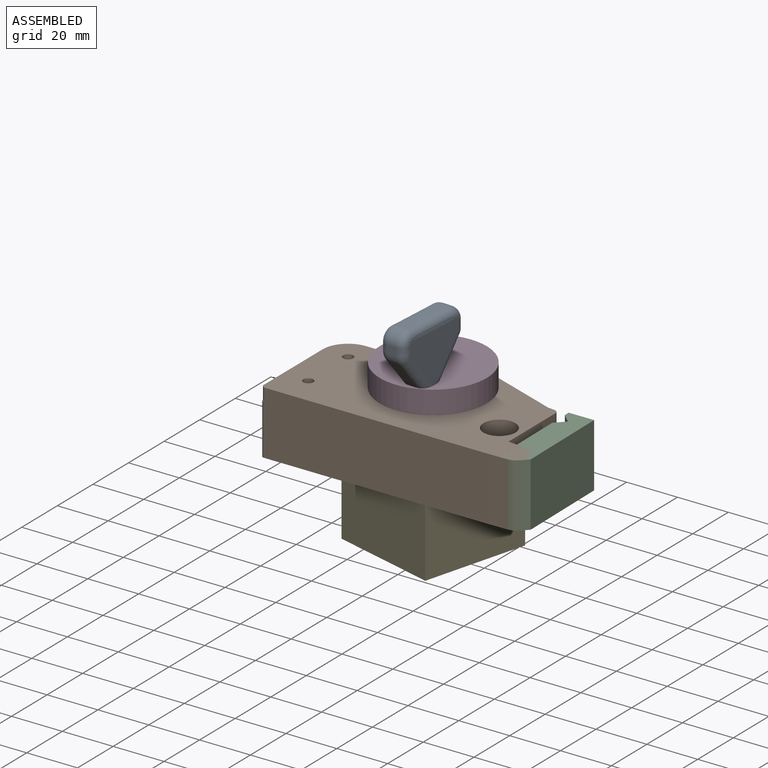
[diagram: assembled view]
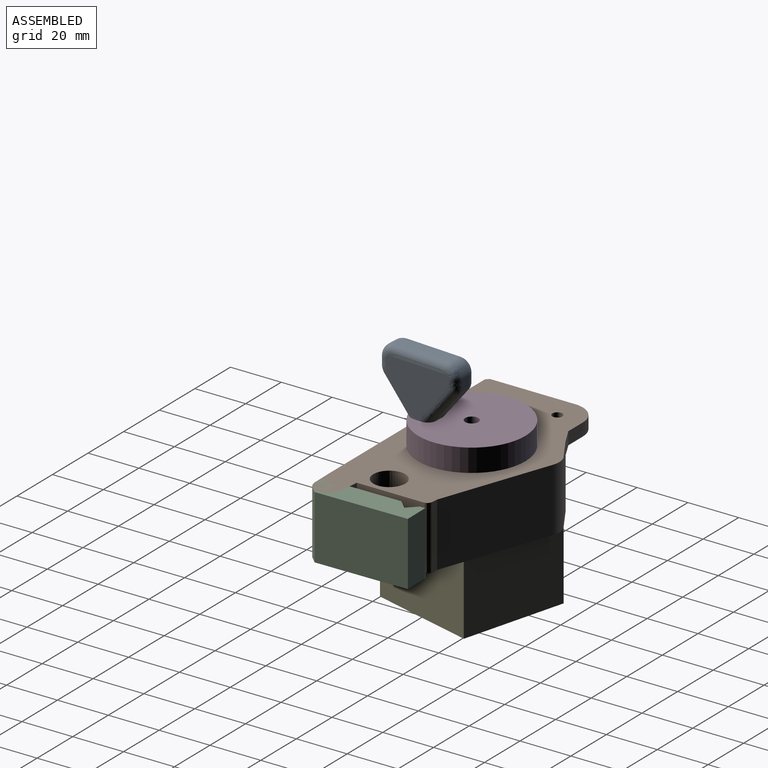
[diagram: assembled view, second angle]
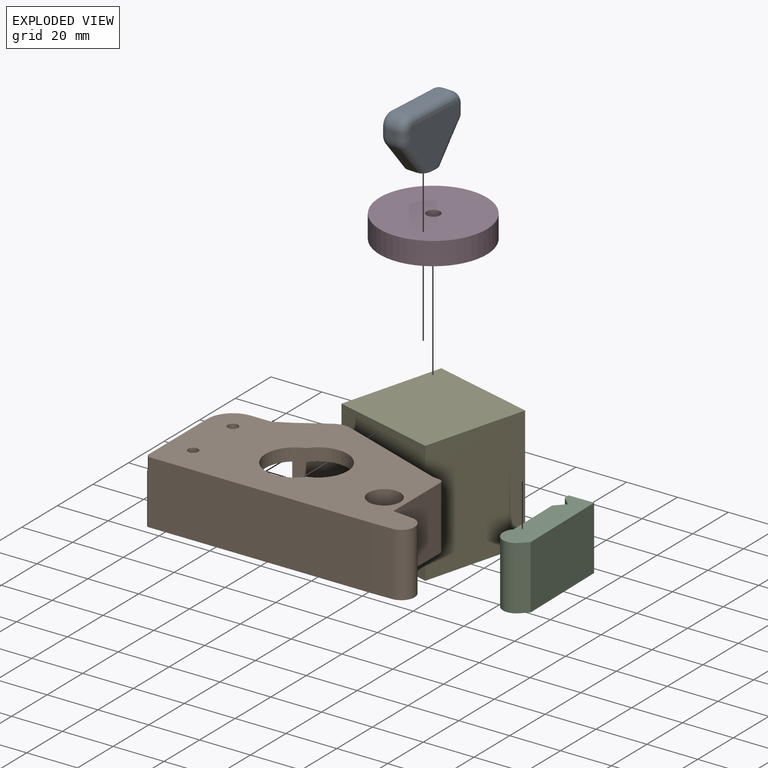
[diagram: exploded view]
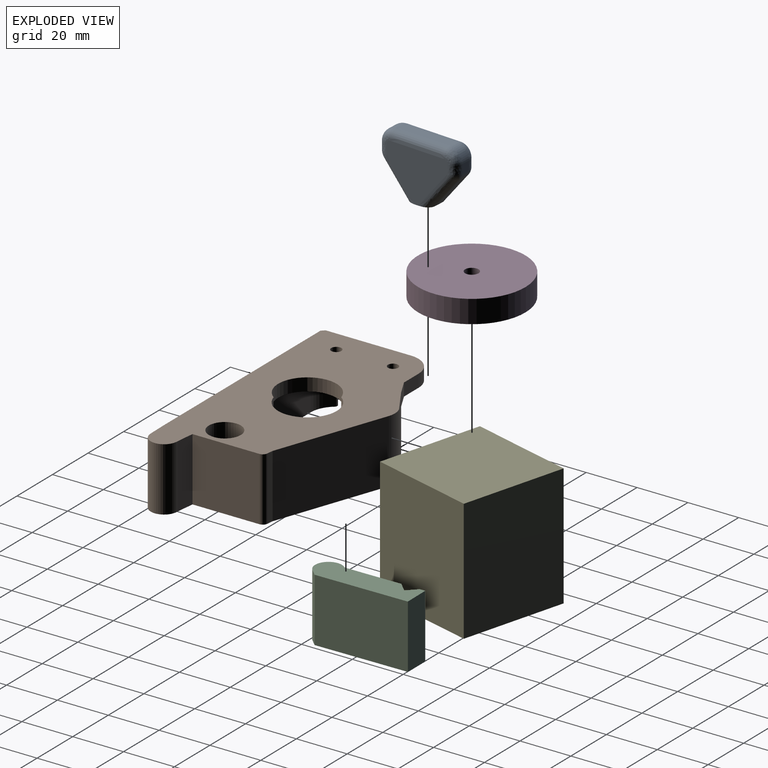
[diagram: exploded view, second angle]
ASSEMBLY  parts=5 mates=4
PART A: 30 faces, bbox 33.2x11.3x27.5 mm
  f0: plane 24.87x19.81mm, normal (0,-1,0), area 313.1mm2, adj f10,f12,f13,f14,f15,f16,f17,f18
  f1: plane 12.04x9.8mm, normal (0.78,0,-0.63), area 46.5mm2, adj f2,f10,f20,f29
  f2: cylinder r=5mm len=3.16mm, axis (0,1,0), area 10.2mm2, adj f1,f3,f19,f28
  f3: plane 3.1x3mm, normal (1,0,0), area 9.3mm2, adj f2,f4,f18,f27
  f4: cylinder r=5mm len=5mm, axis (0,1,0), area 23.5mm2, adj f3,f5,f17,f26
  f5: plane 21.85x3mm, normal (-0.01,0,1), area 65.5mm2, adj f4,f6,f16,f25
  f6: cylinder r=5.03mm len=5.08mm, axis (0,1,0), area 23.7mm2, adj f5,f7,f15,f24
  f7: plane 3.38x3mm, normal (-1,0,-0.01), area 10.1mm2, adj f6,f9,f14,f23
  f8: plane 24.87x19.81mm, normal (0,1,0), area 313.1mm2, adj f10,f21,f22,f23,f24,f25,f26,f27
  f9: cylinder r=3.7mm len=3mm, axis (0,1,0), area 8.6mm2, adj f7,f11,f13,f22
  f10: plane 11.31x11.3mm, normal (0,0,-1), area 90mm2, adj f0,f1,f8,f11,f12,f20,f21,f29
  f11: plane 12.04x9.8mm, normal (-0.78,0,-0.63), area 46.5mm2, adj f9,f10,f12,f21
  f12: bspline ~16.69x14.5mm, area 97.3mm2, adj f0,f10,f11,f13
  f13: bspline ~3.62x3.5mm, area 11.4mm2, adj f0,f9,f12,f14
  f14: bspline ~3.53x3.5mm, area 19.2mm2, adj f0,f7,f13,f15
  f15: bspline ~5.08x5.04mm, area 34.5mm2, adj f0,f6,f14,f16
  f16: bspline ~21.88x3.71mm, area 124.3mm2, adj f0,f5,f15,f17
  f17: bspline ~5x5mm, area 34mm2, adj f0,f4,f16,f18
  f18: bspline ~3.5x3.5mm, area 17.6mm2, adj f0,f3,f17,f19
  f19: bspline ~3.84x3.5mm, area 14.8mm2, adj f0,f2,f18,f20
  f20: bspline ~17.17x14.89mm, area 96.5mm2, adj f0,f1,f10,f19
  f21: bspline ~16.69x14.5mm, area 97.3mm2, adj f8,f10,f11,f22
  f22: bspline ~3.62x3.5mm, area 11.4mm2, adj f8,f9,f21,f23
  f23: bspline ~3.53x3.5mm, area 19.2mm2, adj f7,f8,f22,f24
  f24: bspline ~5.08x5.04mm, area 34.5mm2, adj f6,f8,f23,f25
  f25: bspline ~21.88x3.71mm, area 124.3mm2, adj f5,f8,f24,f26
  f26: bspline ~5x5mm, area 34mm2, adj f4,f8,f25,f27
  f27: bspline ~3.5x3.5mm, area 17.6mm2, adj f3,f8,f26,f28
  f28: bspline ~3.84x3.5mm, area 14.8mm2, adj f2,f8,f27,f29
  f29: bspline ~17.17x14.89mm, area 96.5mm2, adj f1,f8,f10,f28
PART B: 35 faces, bbox 102x55.9x25 mm
  f0: plane 75.62x51.07mm, normal (0,0,-1), area 2496mm2, adj f1,f5,f6,f7,f8,f16,f17,f19
  f1: cylinder r=11.5mm len=22.54mm, axis (0,0,1), area 218.2mm2, adj f0,f17,f20
  f2: plane 43.3x25mm, normal (0.34,0.94,0), area 1149.1mm2, adj f3,f18,f20,f21
  f3: cylinder r=8.07mm len=25mm, axis (0,0,1), area 156.8mm2, adj f2,f4,f20,f21
  f4: plane 25x10.8mm, normal (-0.53,0.85,0), area 318.1mm2, adj f3,f5,f20,f21,f32
  f5: plane 6.8x5mm, normal (-0.47,0.88,0), area 38.6mm2, adj f0,f4,f6,f20
  f6: plane 8.14x5mm, normal (0,1,0), area 40.7mm2, adj f0,f5,f7,f20
  f7: cylinder r=10.01mm len=10.33mm, axis (0,0,1), area 80.2mm2, adj f0,f6,f8,f20
  f8: plane 33.2x25mm, normal (-1,0,0), area 251.4mm2, adj f0,f7,f9,f20,f21,f22,f23
  f9: plane 5x1.2mm, normal (-0.71,-0.71,0), area 8.5mm2, adj f8,f10,f20,f33
  f10: plane 87.66x25mm, normal (0,-1,0), area 2191.5mm2, adj f9,f11,f20,f21,f22
  f11: plane 25x8.02mm, normal (0.02,-1,0), area 200.4mm2, adj f10,f12,f20,f21
  f12: cylinder r=5.25mm len=25mm, axis (0,0,1), area 412.1mm2, adj f11,f13,f20,f21
  f13: plane 25x7.22mm, normal (0.11,0.99,0), area 181.6mm2, adj f12,f14,f20,f21
  f14: plane 26.3x25mm, normal (1,0,0), area 657.5mm2, adj f13,f15,f20,f21
  f15: cylinder r=2mm len=25mm, axis (0,0,1), area 78.5mm2, adj f14,f18,f20,f21
  f16: cylinder r=2mm len=5mm, axis (0,0,1), area 62.8mm2, adj f0,f20
  f17: cylinder r=11.55mm len=22.68mm, axis (0,0,1), area 220.6mm2, adj f0,f1,f20
  f18: plane 25x2.31mm, normal (0.1,1,0), area 58.1mm2, adj f2,f15,f20,f21
  f19: cylinder r=2mm len=5mm, axis (0,0,1), area 62.8mm2, adj f0,f20
  f20: plane 102.03x55.87mm, normal (0,0,1), area 3626.6mm2, adj f1,f2,f3,f4,f5,f6,f7,f8
  f21: plane 102.02x55.87mm, normal (0,0,-1), area 1131mm2, adj f2,f3,f4,f8,f10,f11,f12,f13
  f22: cylinder r=1.2mm len=20mm, axis (0,0,1), area 37.7mm2, adj f8,f10,f21,f33
  f23: cylinder r=1.2mm len=20mm, axis (0,0,1), area 59.4mm2, adj f0,f8,f21,f24
  f24: cylinder r=10mm len=20mm, axis (0,0,1), area 180.8mm2, adj f0,f21,f23,f25
  f25: plane 50.49x20mm, normal (0,1,0), area 1009.9mm2, adj f0,f21,f24,f26
  f26: cylinder r=2.94mm len=20mm, axis (0,0,1), area 72.6mm2, adj f0,f21,f25,f27
  f27: plane 33.35x20mm, normal (-0.94,0.34,0), area 709.8mm2, adj f0,f21,f26,f28
  f28: cylinder r=3mm len=20mm, axis (0,0,1), area 94.7mm2, adj f0,f21,f27,f29
  f29: plane 32.58x20mm, normal (-0.34,-0.94,0), area 691.7mm2, adj f0,f21,f28,f30
  f30: cylinder r=5.67mm len=20mm, axis (0,0,1), area 108mm2, adj f0,f21,f29,f31
  f31: plane 20x10.39mm, normal (0.53,-0.85,0), area 245.2mm2, adj f0,f21,f30,f32
  f32: plane 20x2.46mm, normal (-0.97,-0.22,0), area 50.4mm2, adj f0,f4,f21,f31
  f33: plane 1.2x1.2mm, normal (0,0,1), area 0.4mm2, adj f9,f22
  f34: cylinder r=6.3mm len=25mm, axis (0,0,-1), area 989.6mm2, adj f20,f21
PART C: 11 faces, bbox 11.6x40.5x25 mm
  f0: plane 40.5x11.57mm, normal (0,0,1), area 389.1mm2, adj f1,f2,f3,f4,f5,f6,f7,f8
  f1: plane 36.35x25mm, normal (-1,0,0), area 908.8mm2, adj f0,f2,f7,f10
  f2: plane 25x9.98mm, normal (0,-1,0), area 249.5mm2, adj f0,f1,f3,f10
  f3: plane 25x2.15mm, normal (1,0,0), area 53.8mm2, adj f0,f2,f4,f10
  f4: plane 25x3.61mm, normal (0.71,0.71,0), area 127.5mm2, adj f0,f3,f5,f10
  f5: plane 25x3.62mm, normal (0.7,-0.71,0), area 127.5mm2, adj f0,f4,f6,f10
  f6: plane 25x21.91mm, normal (1,0,0), area 547.8mm2, adj f0,f5,f8,f10
  f7: plane 25x2.61mm, normal (-0.71,0.71,0), area 92.2mm2, adj f0,f1,f9,f10
  f8: plane 25x0.42mm, normal (0.93,-0.38,0), area 11.3mm2, adj f0,f6,f9,f10
  f9: cylinder r=5.25mm len=25mm, axis (0,0,-1), area 407.7mm2, adj f0,f7,f8,f10
  f10: plane 40.5x11.57mm, normal (0,0,-1), area 389.1mm2, adj f1,f2,f3,f4,f5,f6,f7,f8
PART D: 4 faces, bbox 42.2x42.2x9 mm
  f0: plane 42.2x42.2mm, normal (0,0,1), area 1376.8mm2, adj f2,f3
  f1: plane 42.2x42.2mm, normal (0,0,-1), area 1376.8mm2, adj f2,f3
  f2: cylinder r=2.65mm len=9mm, axis (0,0,-1), area 149.9mm2, adj f0,f1
  f3: cylinder r=21.1mm len=42.2mm, axis (0,0,-1), area 1193.3mm2, adj f0,f1
PART E: 6 faces, bbox 62.6x60.4x42 mm
  f0: plane 62.57x60.37mm, normal (0,0,-1), area 2016mm2, adj f1,f3,f4,f5
  f1: plane 42x41.57mm, normal (-0.5,-0.87,0), area 2016mm2, adj f0,f2,f4,f5
  f2: plane 62.57x60.37mm, normal (0,0,1), area 2016mm2, adj f1,f3,f4,f5
  f3: plane 42x41.57mm, normal (0.5,0.87,0), area 2016mm2, adj f0,f2,f4,f5
  f4: plane 42x36.37mm, normal (-0.87,0.5,0), area 1764mm2, adj f0,f1,f2,f3
  f5: plane 42x36.37mm, normal (0.87,-0.5,0), area 1764mm2, adj f0,f1,f2,f3
PLACE A rot(axis=(0,0,-1),92.9deg) t=(-6.06,45.05,74.26)mm
PLACE B t=(-8.76,59.12,39.11)mm fixed
PLACE C rot(axis=(0,0,-1),179.3deg) t=(37.34,51.54,39.11)mm
PLACE D rot(axis=(0.18,-0.98,0),180deg) t=(-11.39,59.08,58.11)mm
PLACE E rot(axis=(0.79,0.33,-0.52),111.8deg) t=(-7.77,72.6,177.89)mm
MATE revolute D.f2 <-> B.f17  axis (0,0,-1) through (-11.39,59.08,53.61)mm
MATE revolute C.f9 <-> B.f12  axis (0,0,1) through (37.05,36.59,51.61)mm
MATE fastened E.f4 <-> B.f17  axis (0,0,1) through (-11.39,59.08,46.61)mm
MATE revolute D.f1 <-> A.f10  axis (0,0,1) through (-6.06,45.05,62.61)mm
